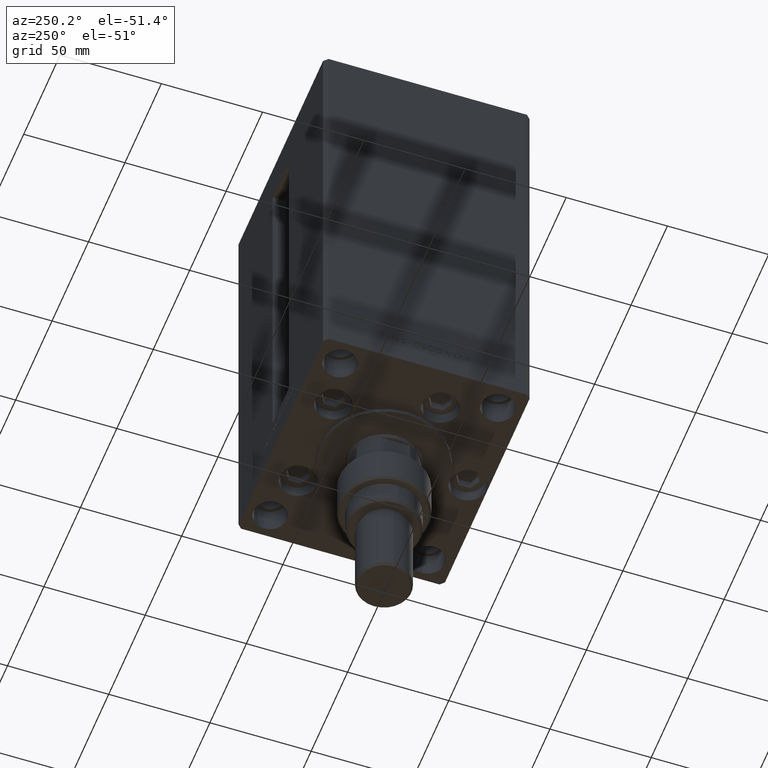
[diagram: clean part render]
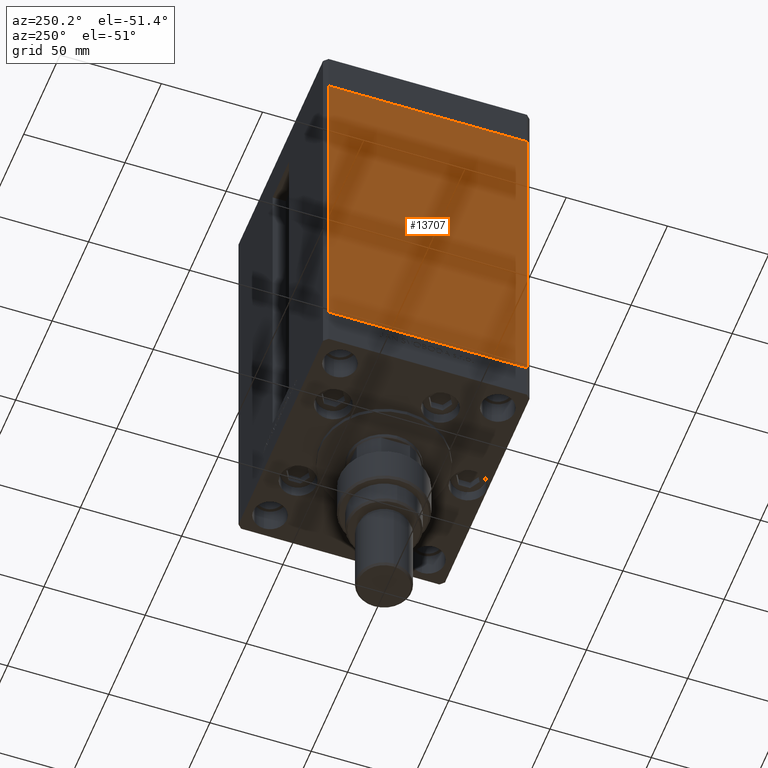
[diagram: same view with one face highlighted and labeled with its STEP entity id]
A machine part, auxiliary view. The second image highlights one B-rep face of the part: STEP entity #13707.
In plain terms, the highlighted planar face has unit normal (1, 0, 0).
Its self-contained STEP definition (entity closure, byte-faithful):
#189 = CARTESIAN_POINT ( 'NONE',  ( -60.00000000000001421, 49.00000000000000000, 168.5000000000000000 ) ) ;
#1134 = DIRECTION ( 'NONE',  ( -0.000000000000000000, -0.000000000000000000, -1.000000000000000000 ) ) ;
#2149 = CARTESIAN_POINT ( 'NONE',  ( -60.00000000000001421, 49.00000000000000000, 0.000000000000000000 ) ) ;
#2206 = LINE ( 'NONE', #18472, #45882 ) ;
#2308 = CARTESIAN_POINT ( 'NONE',  ( -59.99999999999998579, -49.00000000000000000, 168.5000000000000000 ) ) ;
#3076 = CARTESIAN_POINT ( 'NONE',  ( -60.00000000000001421, 49.00000000000000000, 0.000000000000000000 ) ) ;
#4934 = LINE ( 'NONE', #43872, #41921 ) ;
#6723 = PLANE ( 'NONE',  #21499 ) ;
#7679 = EDGE_CURVE ( 'NONE', #48162, #21435, #45027, .T. ) ;
#10235 = CARTESIAN_POINT ( 'NONE',  ( -59.99999999999998579, -49.00000000000000000, 0.000000000000000000 ) ) ;
#12101 = EDGE_CURVE ( 'NONE', #48162, #15164, #2206, .T. ) ;
#12350 = VECTOR ( 'NONE', #44017, 1000.000000000000000 ) ;
#13707 = ADVANCED_FACE ( 'NONE', ( #25811 ), #6723, .F. ) ;
#14105 = DIRECTION ( 'NONE',  ( 1.000000000000000000, 2.832201593431521726E-16, -0.000000000000000000 ) ) ;
#15164 = VERTEX_POINT ( 'NONE', #2308 ) ;
#17897 = ORIENTED_EDGE ( 'NONE', *, *, #12101, .F. ) ;
#18472 = CARTESIAN_POINT ( 'NONE',  ( -60.00000000000001421, 49.00000000000000000, 168.5000000000000000 ) ) ;
#18716 = DIRECTION ( 'NONE',  ( 2.832201593431521726E-16, -1.000000000000000000, 0.000000000000000000 ) ) ;
#19157 = VECTOR ( 'NONE', #26205, 1000.000000000000000 ) ;
#19170 = EDGE_CURVE ( 'NONE', #15164, #33786, #4934, .T. ) ;
#19557 = EDGE_CURVE ( 'NONE', #21435, #33786, #29781, .T. ) ;
#21435 = VERTEX_POINT ( 'NONE', #2149 ) ;
#21499 = AXIS2_PLACEMENT_3D ( 'NONE', #22002, #14105, #45177 ) ;
#21860 = CARTESIAN_POINT ( 'NONE',  ( -60.00000000000001421, 49.00000000000000000, 168.5000000000000000 ) ) ;
#22002 = CARTESIAN_POINT ( 'NONE',  ( -60.00000000000001421, 49.00000000000000000, 168.5000000000000000 ) ) ;
#25811 = FACE_OUTER_BOUND ( 'NONE', #40389, .T. ) ;
#26205 = DIRECTION ( 'NONE',  ( 2.832201593431521726E-16, -1.000000000000000000, 0.000000000000000000 ) ) ;
#29781 = LINE ( 'NONE', #3076, #19157 ) ;
#33786 = VERTEX_POINT ( 'NONE', #10235 ) ;
#34950 = ORIENTED_EDGE ( 'NONE', *, *, #19170, .F. ) ;
#39941 = ORIENTED_EDGE ( 'NONE', *, *, #19557, .T. ) ;
#40389 = EDGE_LOOP ( 'NONE', ( #39941, #34950, #17897, #48968 ) ) ;
#41921 = VECTOR ( 'NONE', #1134, 1000.000000000000000 ) ;
#43872 = CARTESIAN_POINT ( 'NONE',  ( -59.99999999999998579, -49.00000000000000000, 168.5000000000000000 ) ) ;
#44017 = DIRECTION ( 'NONE',  ( -0.000000000000000000, -0.000000000000000000, -1.000000000000000000 ) ) ;
#45027 = LINE ( 'NONE', #21860, #12350 ) ;
#45177 = DIRECTION ( 'NONE',  ( -2.832201593431521726E-16, 1.000000000000000000, 0.000000000000000000 ) ) ;
#45882 = VECTOR ( 'NONE', #18716, 1000.000000000000000 ) ;
#48162 = VERTEX_POINT ( 'NONE', #189 ) ;
#48968 = ORIENTED_EDGE ( 'NONE', *, *, #7679, .T. ) ;